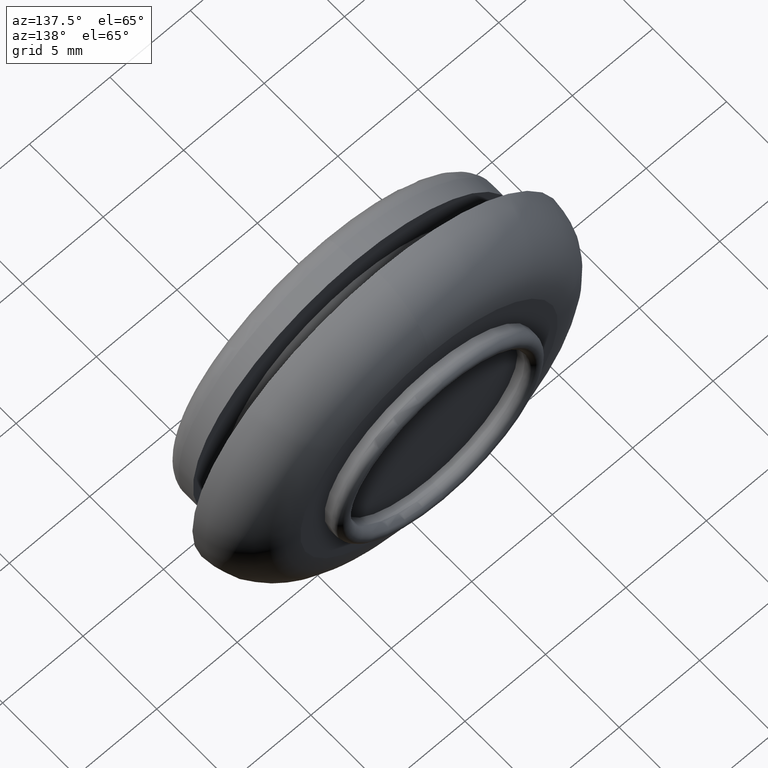
[diagram: clean part render]
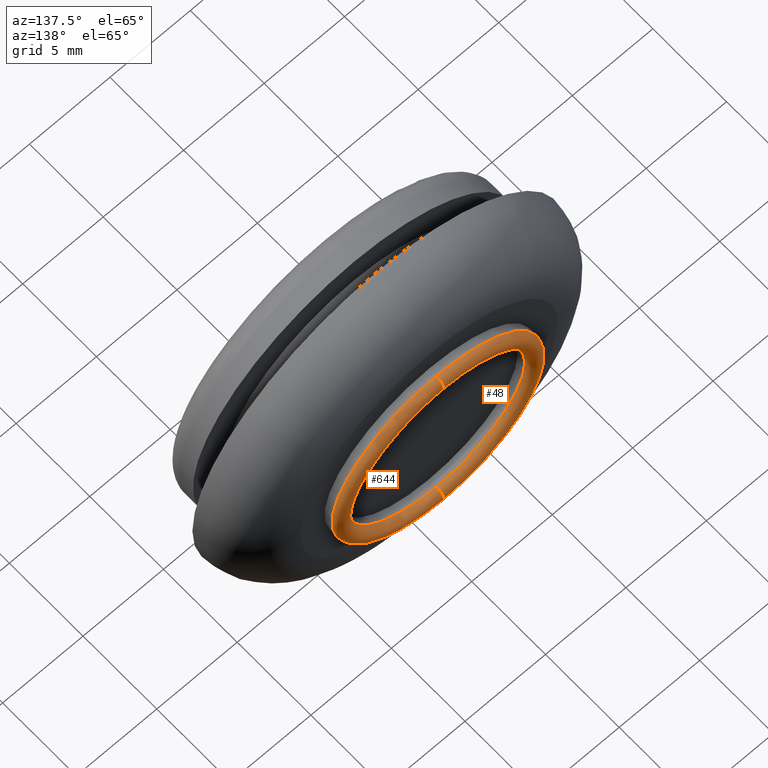
[diagram: same view with one multi-face feature highlighted, each face labeled with its STEP entity id]
A machine part, auxiliary view. The highlighted faces form ONE feature: a constant-radius fillet chain: 2 tangent blend faces with common blend radius 0.5 mm. The faces share edges in the B-rep.
Their STEP definitions:
[1] entity #48 (Torus):
#4 = CIRCLE ( 'NONE', #153, 6.500000000000000000 ) ;
#12 = EDGE_CURVE ( 'NONE', #91, #156, #4, .T. ) ;
#42 = CIRCLE ( 'NONE', #404, 5.500000000000000000 ) ;
#48 = ADVANCED_FACE ( 'NONE', ( #315 ), #344, .T. ) ;
#68 = EDGE_CURVE ( 'NONE', #166, #156, #274, .T. ) ;
#83 = CARTESIAN_POINT ( 'NONE',  ( 0.0000000000000000000, 7.599999999999999600, -6.500000000000000900 ) ) ;
#91 = VERTEX_POINT ( 'NONE', #617 ) ;
#107 = CARTESIAN_POINT ( 'NONE',  ( 0.0000000000000000000, 7.599999999999999600, -3.061515884555945100E-016 ) ) ;
#122 = EDGE_CURVE ( 'NONE', #570, #166, #42, .T. ) ;
#149 = CARTESIAN_POINT ( 'NONE',  ( 0.0000000000000000000, 7.599999999999999600, -6.000000000000000000 ) ) ;
#153 = AXIS2_PLACEMENT_3D ( 'NONE', #107, #259, #509 ) ;
#156 = VERTEX_POINT ( 'NONE', #83 ) ;
#166 = VERTEX_POINT ( 'NONE', #181 ) ;
#181 = CARTESIAN_POINT ( 'NONE',  ( 0.0000000000000000000, 7.599999999999999600, -5.500000000000000000 ) ) ;
#193 = DIRECTION ( 'NONE',  ( 0.0000000000000000000, 0.0000000000000000000, 1.000000000000000000 ) ) ;
#228 = CARTESIAN_POINT ( 'NONE',  ( 7.347880794884119700E-016, 7.599999999999999600, 6.000000000000000000 ) ) ;
#251 = DIRECTION ( 'NONE',  ( 0.0000000000000000000, 0.0000000000000000000, -1.000000000000000000 ) ) ;
#259 = DIRECTION ( 'NONE',  ( 0.0000000000000000000, -1.000000000000000000, 0.0000000000000000000 ) ) ;
#262 = AXIS2_PLACEMENT_3D ( 'NONE', #514, #415, #251 ) ;
#274 = CIRCLE ( 'NONE', #292, 0.5000000000000004400 ) ;
#285 = DIRECTION ( 'NONE',  ( -1.224646799147351500E-016, 0.0000000000000000000, -1.000000000000000000 ) ) ;
#292 = AXIS2_PLACEMENT_3D ( 'NONE', #149, #413, #193 ) ;
#315 = FACE_OUTER_BOUND ( 'NONE', #592, .T. ) ;
#320 = CARTESIAN_POINT ( 'NONE',  ( 6.735557395310442000E-016, 7.599999999999999600, 5.500000000000000000 ) ) ;
#344 = TOROIDAL_SURFACE ( 'NONE', #262, 6.000000000000000000, 0.5000000000000000000 ) ;
#347 = ORIENTED_EDGE ( 'NONE', *, *, #122, .T. ) ;
#381 = ORIENTED_EDGE ( 'NONE', *, *, #68, .T. ) ;
#404 = AXIS2_PLACEMENT_3D ( 'NONE', #645, #598, #556 ) ;
#413 = DIRECTION ( 'NONE',  ( -1.000000000000000000, -0.0000000000000000000, -0.0000000000000000000 ) ) ;
#415 = DIRECTION ( 'NONE',  ( 0.0000000000000000000, -1.000000000000000000, 0.0000000000000000000 ) ) ;
#434 = ORIENTED_EDGE ( 'NONE', *, *, #12, .F. ) ;
#464 = AXIS2_PLACEMENT_3D ( 'NONE', #228, #580, #285 ) ;
#505 = EDGE_CURVE ( 'NONE', #570, #91, #590, .T. ) ;
#509 = DIRECTION ( 'NONE',  ( 0.0000000000000000000, 0.0000000000000000000, -1.000000000000000000 ) ) ;
#514 = CARTESIAN_POINT ( 'NONE',  ( 0.0000000000000000000, 7.599999999999999600, 0.0000000000000000000 ) ) ;
#534 = ORIENTED_EDGE ( 'NONE', *, *, #505, .F. ) ;
#556 = DIRECTION ( 'NONE',  ( 0.0000000000000000000, 0.0000000000000000000, -1.000000000000000000 ) ) ;
#570 = VERTEX_POINT ( 'NONE', #320 ) ;
#580 = DIRECTION ( 'NONE',  ( 1.000000000000000000, 0.0000000000000000000, -1.224646799147353200E-016 ) ) ;
#590 = CIRCLE ( 'NONE', #464, 0.5000000000000004400 ) ;
#592 = EDGE_LOOP ( 'NONE', ( #534, #347, #381, #434 ) ) ;
#598 = DIRECTION ( 'NONE',  ( 0.0000000000000000000, -1.000000000000000000, 0.0000000000000000000 ) ) ;
#617 = CARTESIAN_POINT ( 'NONE',  ( 7.960204194457795500E-016, 7.599999999999999600, 6.500000000000000900 ) ) ;
#645 = CARTESIAN_POINT ( 'NONE',  ( 0.0000000000000000000, 7.599999999999999600, -3.061515884555945100E-016 ) ) ;
[2] entity #644 (Torus):
#6 = AXIS2_PLACEMENT_3D ( 'NONE', #288, #584, #237 ) ;
#41 = EDGE_LOOP ( 'NONE', ( #350, #119, #254, #433 ) ) ;
#68 = EDGE_CURVE ( 'NONE', #166, #156, #274, .T. ) ;
#83 = CARTESIAN_POINT ( 'NONE',  ( 0.0000000000000000000, 7.599999999999999600, -6.500000000000000900 ) ) ;
#91 = VERTEX_POINT ( 'NONE', #617 ) ;
#119 = ORIENTED_EDGE ( 'NONE', *, *, #505, .T. ) ;
#126 = CIRCLE ( 'NONE', #6, 5.500000000000000000 ) ;
#149 = CARTESIAN_POINT ( 'NONE',  ( 0.0000000000000000000, 7.599999999999999600, -6.000000000000000000 ) ) ;
#156 = VERTEX_POINT ( 'NONE', #83 ) ;
#160 = EDGE_CURVE ( 'NONE', #166, #570, #126, .T. ) ;
#166 = VERTEX_POINT ( 'NONE', #181 ) ;
#169 = CARTESIAN_POINT ( 'NONE',  ( 0.0000000000000000000, 7.599999999999999600, -3.061515884555945100E-016 ) ) ;
#181 = CARTESIAN_POINT ( 'NONE',  ( 0.0000000000000000000, 7.599999999999999600, -5.500000000000000000 ) ) ;
#183 = AXIS2_PLACEMENT_3D ( 'NONE', #169, #528, #221 ) ;
#193 = DIRECTION ( 'NONE',  ( 0.0000000000000000000, 0.0000000000000000000, 1.000000000000000000 ) ) ;
#221 = DIRECTION ( 'NONE',  ( 0.0000000000000000000, 0.0000000000000000000, -1.000000000000000000 ) ) ;
#228 = CARTESIAN_POINT ( 'NONE',  ( 7.347880794884119700E-016, 7.599999999999999600, 6.000000000000000000 ) ) ;
#237 = DIRECTION ( 'NONE',  ( 0.0000000000000000000, 0.0000000000000000000, -1.000000000000000000 ) ) ;
#254 = ORIENTED_EDGE ( 'NONE', *, *, #411, .F. ) ;
#257 = CIRCLE ( 'NONE', #183, 6.500000000000000000 ) ;
#263 = TOROIDAL_SURFACE ( 'NONE', #391, 6.000000000000000000, 0.5000000000000000000 ) ;
#274 = CIRCLE ( 'NONE', #292, 0.5000000000000004400 ) ;
#281 = DIRECTION ( 'NONE',  ( 0.0000000000000000000, -1.000000000000000000, 0.0000000000000000000 ) ) ;
#285 = DIRECTION ( 'NONE',  ( -1.224646799147351500E-016, 0.0000000000000000000, -1.000000000000000000 ) ) ;
#288 = CARTESIAN_POINT ( 'NONE',  ( 0.0000000000000000000, 7.599999999999999600, -3.061515884555945100E-016 ) ) ;
#292 = AXIS2_PLACEMENT_3D ( 'NONE', #149, #413, #193 ) ;
#320 = CARTESIAN_POINT ( 'NONE',  ( 6.735557395310442000E-016, 7.599999999999999600, 5.500000000000000000 ) ) ;
#350 = ORIENTED_EDGE ( 'NONE', *, *, #160, .T. ) ;
#391 = AXIS2_PLACEMENT_3D ( 'NONE', #563, #281, #414 ) ;
#409 = FACE_OUTER_BOUND ( 'NONE', #41, .T. ) ;
#411 = EDGE_CURVE ( 'NONE', #156, #91, #257, .T. ) ;
#413 = DIRECTION ( 'NONE',  ( -1.000000000000000000, -0.0000000000000000000, -0.0000000000000000000 ) ) ;
#414 = DIRECTION ( 'NONE',  ( 0.0000000000000000000, 0.0000000000000000000, -1.000000000000000000 ) ) ;
#433 = ORIENTED_EDGE ( 'NONE', *, *, #68, .F. ) ;
#464 = AXIS2_PLACEMENT_3D ( 'NONE', #228, #580, #285 ) ;
#505 = EDGE_CURVE ( 'NONE', #570, #91, #590, .T. ) ;
#528 = DIRECTION ( 'NONE',  ( 0.0000000000000000000, -1.000000000000000000, 0.0000000000000000000 ) ) ;
#563 = CARTESIAN_POINT ( 'NONE',  ( 0.0000000000000000000, 7.599999999999999600, 0.0000000000000000000 ) ) ;
#570 = VERTEX_POINT ( 'NONE', #320 ) ;
#580 = DIRECTION ( 'NONE',  ( 1.000000000000000000, 0.0000000000000000000, -1.224646799147353200E-016 ) ) ;
#584 = DIRECTION ( 'NONE',  ( 0.0000000000000000000, -1.000000000000000000, 0.0000000000000000000 ) ) ;
#590 = CIRCLE ( 'NONE', #464, 0.5000000000000004400 ) ;
#617 = CARTESIAN_POINT ( 'NONE',  ( 7.960204194457795500E-016, 7.599999999999999600, 6.500000000000000900 ) ) ;
#644 = ADVANCED_FACE ( 'NONE', ( #409 ), #263, .T. ) ;